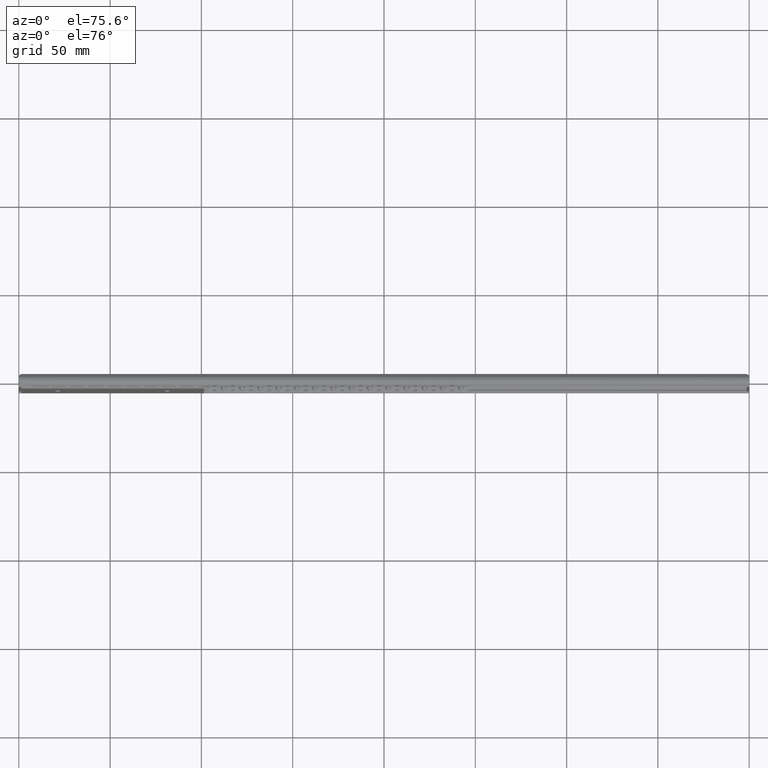
[diagram: clean part render]
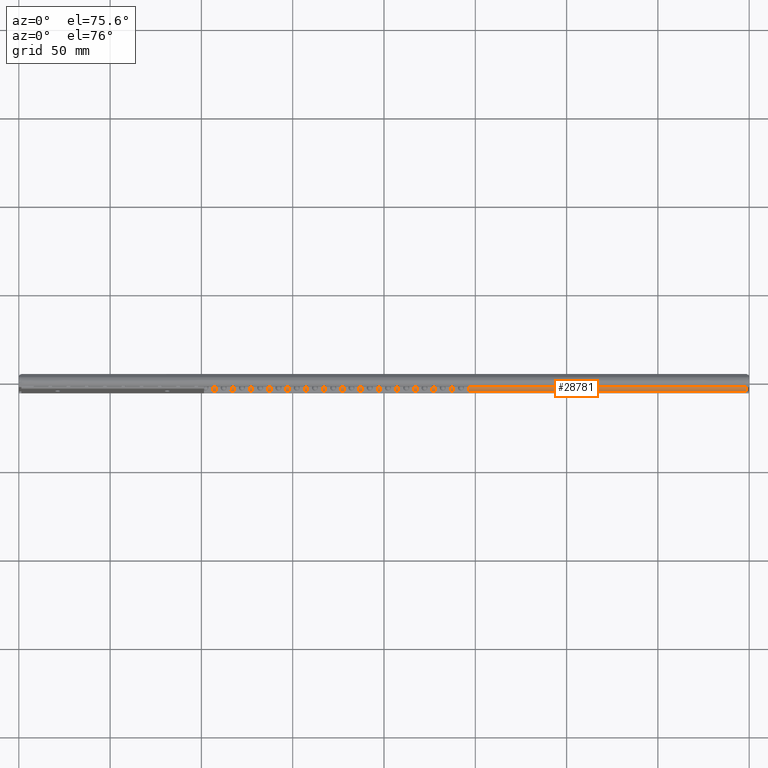
[diagram: same view with one face highlighted and labeled with its STEP entity id]
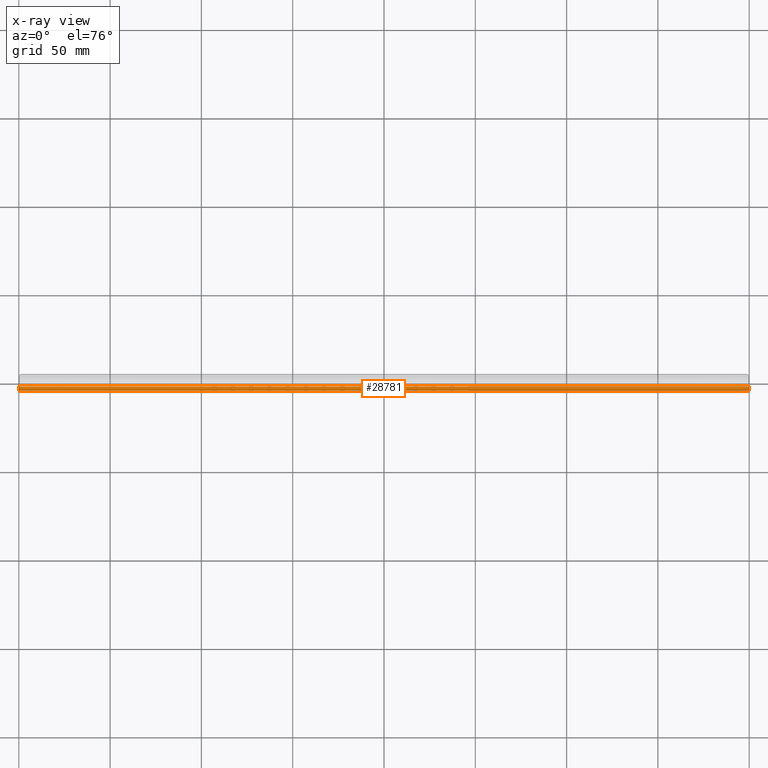
[diagram: x-ray of the same camera — body ghosted, the highlighted face saturated]
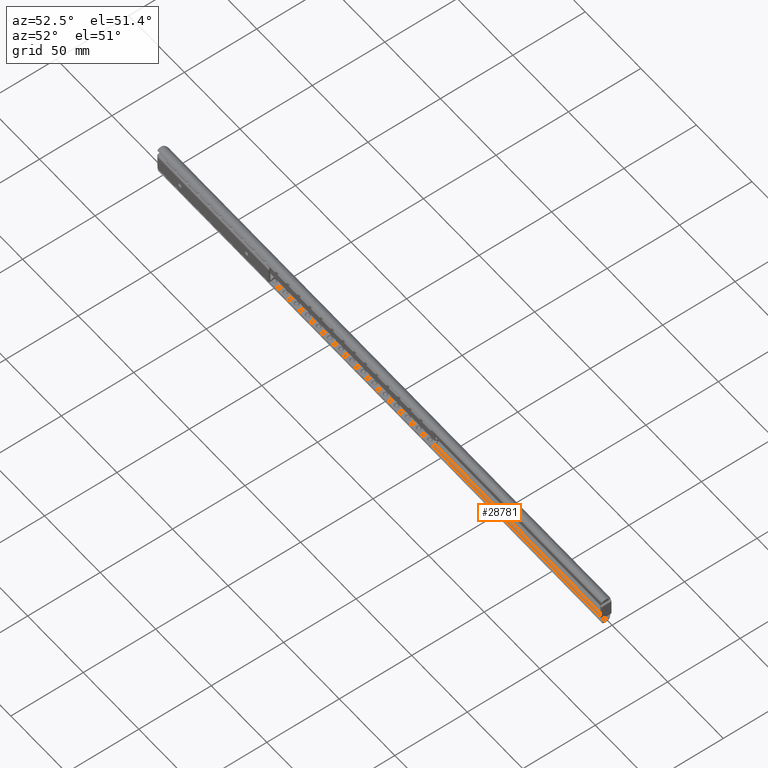
[diagram: same view with one face highlighted and labeled with its STEP entity id]
A machine part, auxiliary view. The second image highlights one B-rep face of the part: STEP entity #28781.
The next image is the same camera in x-ray: the body ghosted, the highlighted face saturated — about 0% of this face is hidden behind the body in this view.
A second angle (auxiliary view) of the same face is appended — the face is thin or edge-on in the first view.
In plain terms, the highlighted face is a freeform B-spline surface patch.
Its self-contained STEP definition (entity closure, byte-faithful):
#27175=CARTESIAN_POINT('',(399.707107000000010,-5.725739963287510,-8.021319999999999));
#27176=VERTEX_POINT('',#27175);
#27184=CARTESIAN_POINT('',(399.358451656231010,-5.943723999999921,-7.672665000000000));
#27185=VERTEX_POINT('',#27184);
#27186=CARTESIAN_POINT('',(399.358451656231010,-5.943723999999921,-7.672665000000000));
#27187=CARTESIAN_POINT('',(399.547014442451260,-5.857500711490622,-7.861227600300166));
#27188=CARTESIAN_POINT('',(399.707107000000120,-5.725739963287600,-8.021319999999955));
#27196=(BOUNDED_CURVE()B_SPLINE_CURVE(2,(#27186,#27187,#27188),.UNSPECIFIED.,.F.,.U.)CURVE()GEOMETRIC_REPRESENTATION_ITEM()QUASI_UNIFORM_CURVE()RATIONAL_B_SPLINE_CURVE((1.0,0.991578269116412,1.0))REPRESENTATION_ITEM(''));
#27197=EDGE_CURVE('',#27185,#27176,#27196,.T.);
#27273=CARTESIAN_POINT('',(399.833379019755510,-3.419692415967285,-8.175724730600940));
#27274=VERTEX_POINT('',#27273);
#27288=CARTESIAN_POINT('',(399.707107000000010,-5.725739963287510,-8.021319999999999));
#27289=CARTESIAN_POINT('',(399.775674506400320,-5.669306510408355,-8.089887944027337));
#27290=CARTESIAN_POINT('',(399.826699468262920,-5.601531385776308,-8.160429519200863));
#27291=CARTESIAN_POINT('',(399.885126595584210,-5.481331032439225,-8.261453556381465));
#27292=CARTESIAN_POINT('',(399.901218637140570,-5.438784112041716,-8.293799683127368));
#27293=CARTESIAN_POINT('',(399.927990555278880,-5.349981310221519,-8.354355528467343));
#27294=CARTESIAN_POINT('',(399.938746699784990,-5.303555743553283,-8.382713120638599));
#27295=CARTESIAN_POINT('',(399.956404438854410,-5.206724443561032,-8.435077375695599));
#27296=CARTESIAN_POINT('',(399.963233494661320,-5.156632175014257,-8.458885160715244));
#27297=CARTESIAN_POINT('',(399.974026483070870,-5.054707689474463,-8.500953971622614));
#27298=CARTESIAN_POINT('',(399.978027269865210,-5.002655628232700,-8.519338064156868));
#27299=CARTESIAN_POINT('',(399.984210490252510,-4.896421612067400,-8.550704647526430));
#27300=CARTESIAN_POINT('',(399.986396299474110,-4.841951288827494,-8.563727868990446));
#27301=CARTESIAN_POINT('',(399.989542400723280,-4.732747871664976,-8.583826514031651));
#27302=CARTESIAN_POINT('',(399.991489674340190,-4.623146183363886,-8.598092107311221));
#27303=CARTESIAN_POINT('',(399.991838180423830,-4.512770832741692,-8.600915145929744));
#27304=CARTESIAN_POINT('',(399.991451262970710,-4.402004261262550,-8.597940823612548));
#27305=CARTESIAN_POINT('',(399.990882661668710,-4.346114890776136,-8.593497619715128));
#27306=CARTESIAN_POINT('',(399.987735950608910,-4.181126789628299,-8.571598305832341));
#27307=CARTESIAN_POINT('',(399.983900923841080,-4.074163141218002,-8.545783272597296));
#27308=CARTESIAN_POINT('',(399.973567018683580,-3.944337774317567,-8.499831297776382));
#27309=CARTESIAN_POINT('',(399.971209691150700,-3.918569036248675,-8.489950455096125));
#27310=CARTESIAN_POINT('',(399.965768477949210,-3.867436349311151,-8.468791536986926));
#27311=CARTESIAN_POINT('',(399.962672492157820,-3.841996775741736,-8.457474530587335));
#27312=CARTESIAN_POINT('',(399.952157468827920,-3.767170712148120,-8.421815803355340));
#27313=CARTESIAN_POINT('',(399.943514820529910,-3.719107200333321,-8.395718795472922));
#27314=CARTESIAN_POINT('',(399.921680446337180,-3.626678421797373,-8.339299616282164));
#27315=CARTESIAN_POINT('',(399.908495682186010,-3.582313181294259,-8.308974595375970));
#27316=CARTESIAN_POINT('',(399.875865529387680,-3.497444315294570,-8.244521741994172));
#27317=CARTESIAN_POINT('',(399.856429994666830,-3.457117354216892,-8.210481939211974));
#27318=CARTESIAN_POINT('',(399.833379019755510,-3.419692415967285,-8.175724730600940));
#27319=B_SPLINE_CURVE_WITH_KNOTS('',3,(#27288,#27289,#27290,#27291,#27292,#27293,#27294,#27295,#27296,#27297,#27298,#27299,#27300,#27301,#27302,#27303,#27304,#27305,#27306,#27307,#27308,#27309,#27310,#27311,#27312,#27313,#27314,#27315,#27316,#27317,#27318),.UNSPECIFIED.,.F.,.U.,(4,2,2,2,2,2,2,1,2,2,2,2,2,2,2,4),(0.0,0.124999999999982,0.187499999999985,0.249999999999987,0.312499999999989,0.374999999999991,0.437499999999994,0.499999999999996,0.562499999999998,0.625000000000001,0.750000000000006,0.781250000000006,0.812500000000005,0.875000000000003,0.937500000000002,1.0),.UNSPECIFIED.);
#27320=EDGE_CURVE('',#27176,#27274,#27319,.T.);
#28120=CARTESIAN_POINT('',(0.292892999999993,-5.725739963287510,-8.021319999999999));
#28121=VERTEX_POINT('',#28120);
#28122=CARTESIAN_POINT('',(0.641548343769061,-5.943723999999921,-7.672665000000000));
#28123=VERTEX_POINT('',#28122);
#28124=CARTESIAN_POINT('',(0.292892999999993,-5.725739963287510,-8.021319999999999));
#28125=CARTESIAN_POINT('',(0.452985372662478,-5.857500559323939,-7.861227785186283));
#28126=CARTESIAN_POINT('',(0.641548343769061,-5.943723999999921,-7.672665000000000));
#28134=(BOUNDED_CURVE()B_SPLINE_CURVE(2,(#28124,#28125,#28126),.UNSPECIFIED.,.F.,.U.)CURVE()GEOMETRIC_REPRESENTATION_ITEM()QUASI_UNIFORM_CURVE()RATIONAL_B_SPLINE_CURVE((1.0,0.991578288323385,1.0))REPRESENTATION_ITEM(''));
#28135=EDGE_CURVE('',#28121,#28123,#28134,.T.);
#28378=CARTESIAN_POINT('',(0.166620980244670,-3.419692415967285,-8.175724730600940));
#28379=VERTEX_POINT('',#28378);
#28380=CARTESIAN_POINT('',(0.166620980244670,-3.419692415967285,-8.175724730600940));
#28381=CARTESIAN_POINT('',(0.120482781431991,-3.494600765668788,-8.245293452930383));
#28382=CARTESIAN_POINT('',(0.089783391676515,-3.578648664048484,-8.309841989610160));
#28383=CARTESIAN_POINT('',(0.056736174183199,-3.717801242000487,-8.394989935243853));
#28384=CARTESIAN_POINT('',(0.047948153944946,-3.766563900210874,-8.421492481239698));
#28385=CARTESIAN_POINT('',(0.033940830425420,-3.865954232903676,-8.468925174834306));
#28386=CARTESIAN_POINT('',(0.028642922500537,-3.916853920060107,-8.490048349409829));
#28387=CARTESIAN_POINT('',(0.020310585746676,-4.020981328289566,-8.527012986918821));
#28388=CARTESIAN_POINT('',(0.017271645188550,-4.074404549881091,-8.542900728761925));
#28389=CARTESIAN_POINT('',(0.012707634119888,-4.182697091378318,-8.568962894494170));
#28390=CARTESIAN_POINT('',(0.011191072551850,-4.237144191678847,-8.579060408795405));
#28391=CARTESIAN_POINT('',(0.009112428944407,-4.346616507697915,-8.593537063026231));
#28392=CARTESIAN_POINT('',(0.008551985817989,-4.401641769899197,-8.597915987634659));
#28393=CARTESIAN_POINT('',(0.008161599144303,-4.512270775176922,-8.600916703309526));
#28394=CARTESIAN_POINT('',(0.008334695053936,-4.568159444647425,-8.599512113529743));
#28395=CARTESIAN_POINT('',(0.010082874951191,-4.734601947351671,-8.586509469424179));
#28396=CARTESIAN_POINT('',(0.012698817931478,-4.842935956052910,-8.566428150654676));
#28397=CARTESIAN_POINT('',(0.021893337674894,-5.001481336939039,-8.519718662981516));
#28398=CARTESIAN_POINT('',(0.025881064520952,-5.053732396389740,-8.501334486872635));
#28399=CARTESIAN_POINT('',(0.036745819249855,-5.156537977153293,-8.458945844360679));
#28400=CARTESIAN_POINT('',(0.043537001122862,-5.206248806870319,-8.435294784368788));
#28401=CARTESIAN_POINT('',(0.060988453817057,-5.302255053976819,-8.383455580608436));
#28402=CARTESIAN_POINT('',(0.071643255376124,-5.348550313279882,-8.355265109719911));
#28403=CARTESIAN_POINT('',(0.098357194032801,-5.437587182762929,-8.294680193563748));
#28404=CARTESIAN_POINT('',(0.114579157514698,-5.480576612402835,-8.262034030943257));
#28405=CARTESIAN_POINT('',(0.153200295311949,-5.560325354204259,-8.195114024315762));
#28406=CARTESIAN_POINT('',(0.175634123371396,-5.597361013807537,-8.160690504322172));
#28407=CARTESIAN_POINT('',(0.228216856993348,-5.665882185271200,-8.091045946590850));
#28408=CARTESIAN_POINT('',(0.258587913426160,-5.697505498759225,-8.055625524200195));
#28409=CARTESIAN_POINT('',(0.292892999999993,-5.725739963287510,-8.021319999999999));
#28410=B_SPLINE_CURVE_WITH_KNOTS('',3,(#28380,#28381,#28382,#28383,#28384,#28385,#28386,#28387,#28388,#28389,#28390,#28391,#28392,#28393,#28394,#28395,#28396,#28397,#28398,#28399,#28400,#28401,#28402,#28403,#28404,#28405,#28406,#28407,#28408,#28409),.UNSPECIFIED.,.F.,.U.,(4,2,2,2,2,2,2,2,2,2,2,2,2,2,4),(0.0,0.124999999999999,0.187499999999998,0.249999999999998,0.312499999999998,0.374999999999997,0.437499999999997,0.499999999999996,0.624999999999997,0.687499999999997,0.749999999999998,0.812499999999998,0.874999999999999,0.937499999999999,1.0),.UNSPECIFIED.);
#28411=EDGE_CURVE('',#28379,#28121,#28410,.T.);
#28511=CARTESIAN_POINT('',(399.833379019755510,-3.419692415967285,-8.175724730600940));
#28512=CARTESIAN_POINT('',(0.166620980244670,-3.419692415967285,-8.175724730600940));
#28513=QUASI_UNIFORM_CURVE('',1,(#28511,#28512),.UNSPECIFIED.,.F.,.U.);
#28514=EDGE_CURVE('',#27274,#28379,#28513,.T.);
#28755=CARTESIAN_POINT('',(409.991302283694610,-5.949429818130289,-7.660041081565429));
#28756=CARTESIAN_POINT('',(-10.241291630294540,-5.949429818130289,-7.660041081565429));
#28757=CARTESIAN_POINT('',(409.991302283694610,-4.989410685093009,-9.808909156523916));
#28758=CARTESIAN_POINT('',(-10.241291630294540,-4.989410685093009,-9.808909156523916));
#28759=CARTESIAN_POINT('',(409.991302283694610,-3.356644397438680,-8.113814767036139));
#28760=CARTESIAN_POINT('',(-10.241291630294540,-3.356644397438680,-8.113814767036139));
#28768=(BOUNDED_SURFACE()B_SPLINE_SURFACE(1,2,((#28755,#28757,#28759),(#28756,#28758,#28760)),.UNSPECIFIED.,.F.,.F.,.U.)B_SPLINE_SURFACE_WITH_KNOTS((2,2),(3,3),(0.0,420.232593913989210),(0.0,3.376354891050388),.UNSPECIFIED.)GEOMETRIC_REPRESENTATION_ITEM()RATIONAL_B_SPLINE_SURFACE(((1.0,0.559192903470747,1.0),(1.0,0.559192903470747,1.0)))REPRESENTATION_ITEM('')SURFACE());
#28769=CARTESIAN_POINT('',(399.358451656231010,-5.943723999999921,-7.672665000000000));
#28770=CARTESIAN_POINT('',(0.641548343769061,-5.943723999999921,-7.672665000000000));
#28771=QUASI_UNIFORM_CURVE('',1,(#28769,#28770),.UNSPECIFIED.,.F.,.U.);
#28772=EDGE_CURVE('',#27185,#28123,#28771,.T.);
#28773=ORIENTED_EDGE('',*,*,#28772,.F.);
#28774=ORIENTED_EDGE('',*,*,#27197,.T.);
#28775=ORIENTED_EDGE('',*,*,#27320,.T.);
#28776=ORIENTED_EDGE('',*,*,#28514,.T.);
#28777=ORIENTED_EDGE('',*,*,#28411,.T.);
#28778=ORIENTED_EDGE('',*,*,#28135,.T.);
#28779=EDGE_LOOP('',(#28773,#28774,#28775,#28776,#28777,#28778));
#28780=FACE_OUTER_BOUND('',#28779,.T.);
#28781=ADVANCED_FACE('',(#28780),#28768,.F.);